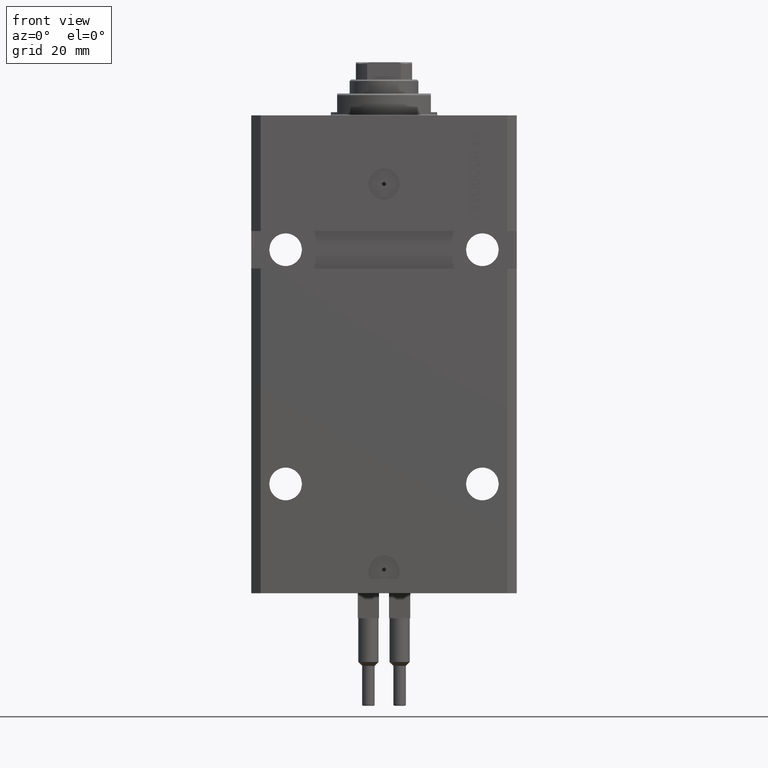
[diagram: clean part render]
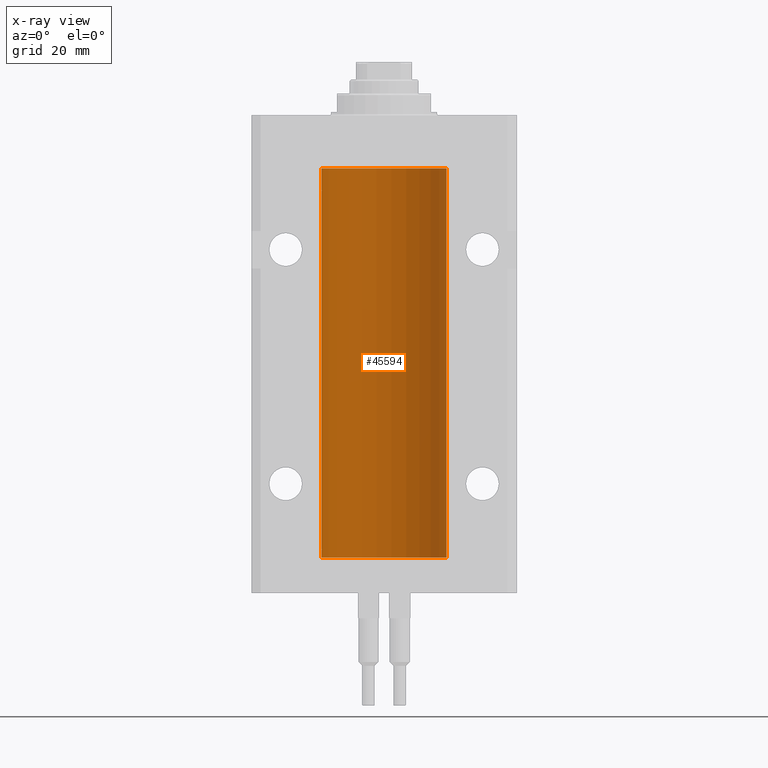
[diagram: x-ray — body ghosted, one internal face saturated and labeled with its STEP entity id]
A machine part, front view, then the same camera in x-ray: the body is ghosted and one INTERNAL B-rep face — a face not visible from any outside direction — is saturated and labeled: STEP entity #45594.
In plain terms, the highlighted cylindrical surface (partial cylindrical patch) has radius 20 mm, axis along (0, 0, 1).
Its self-contained STEP definition (entity closure, byte-faithful):
#253 = CARTESIAN_POINT ( 'NONE',  ( -19.99253506710755346, 0.5587120480776690545, -139.3251162083025463 ) ) ;
#315 = ORIENTED_EDGE ( 'NONE', *, *, #30732, .F. ) ;
#505 = CARTESIAN_POINT ( 'NONE',  ( -20.00000000000000000, 0.08259581631025542103, -138.3749999999999716 ) ) ;
#1301 = EDGE_CURVE ( 'NONE', #38886, #46113, #16528, .T. ) ;
#1458 = B_SPLINE_CURVE_WITH_KNOTS ( 'NONE', 3,
 ( #38087, #505, #22746, #15553, #19514, #41800, #34142, #34627, #253, #45517, #4213, #14595 ),
 .UNSPECIFIED., .F., .F.,
 ( 4, 2, 2, 2, 2, 4 ),
 ( 5.247116368830962784E-19, 0.0002442693137305545852, 0.0004885386274611086283, 0.0009770772549221576255, 0.001465615882383206840, 0.001954154509844256270 ),
 .UNSPECIFIED. ) ;
#1608 = CARTESIAN_POINT ( 'NONE',  ( 0.000000000000000000, 0.000000000000000000, -17.00000000000000000 ) ) ;
#1985 = CARTESIAN_POINT ( 'NONE',  ( -19.99023380173166231, 0.6249420416828462832, -23.83670793056396064 ) ) ;
#2408 = CIRCLE ( 'NONE', #37945, 20.00000000000000000 ) ;
#2622 = ORIENTED_EDGE ( 'NONE', *, *, #30513, .T. ) ;
#2818 = CARTESIAN_POINT ( 'NONE',  ( 0.000000000000000000, 0.000000000000000000, -141.5999999999999943 ) ) ;
#2864 = AXIS2_PLACEMENT_3D ( 'NONE', #2818, #29021, #32740 ) ;
#3068 = FACE_OUTER_BOUND ( 'NONE', #20297, .T. ) ;
#3634 = DIRECTION ( 'NONE',  ( -0.000000000000000000, -0.000000000000000000, 1.000000000000000000 ) ) ;
#4071 = CARTESIAN_POINT ( 'NONE',  ( 20.00000000000000000, 0.000000000000000000, -141.5999999999999943 ) ) ;
#4213 = CARTESIAN_POINT ( 'NONE',  ( -19.99999999999999645, 0.1631688615953307553, -139.6249999999998010 ) ) ;
#4374 = AXIS2_PLACEMENT_3D ( 'NONE', #1608, #28320, #29059 ) ;
#4695 = ORIENTED_EDGE ( 'NONE', *, *, #10220, .T. ) ;
#5682 = CARTESIAN_POINT ( 'NONE',  ( -19.99253506710754991, 0.5587120480776751608, -24.32511620830248589 ) ) ;
#8240 = CARTESIAN_POINT ( 'NONE',  ( -20.00000000000000000, 2.449293598294706513E-15, -141.5999999999999943 ) ) ;
#9238 = VERTEX_POINT ( 'NONE', #28872 ) ;
#10220 = EDGE_CURVE ( 'NONE', #18214, #35344, #1458, .T. ) ;
#11344 = VECTOR ( 'NONE', #3634, 1000.000000000000000 ) ;
#11480 = ORIENTED_EDGE ( 'NONE', *, *, #16152, .F. ) ;
#13123 = VERTEX_POINT ( 'NONE', #25276 ) ;
#13573 = CARTESIAN_POINT ( 'NONE',  ( -20.00000000000000000, 0.1631688615953320320, -24.62499999999985434 ) ) ;
#14595 = CARTESIAN_POINT ( 'NONE',  ( -20.00000000000010303, 3.580159249456421507E-13, -139.6250000000033253 ) ) ;
#14878 = VERTEX_POINT ( 'NONE', #22662 ) ;
#15045 = B_SPLINE_CURVE_WITH_KNOTS ( 'NONE', 3,
 ( #21486, #17023, #47989, #28926, #36592, #20486, #1985, #44009, #5682, #24461, #13573, #32147 ),
 .UNSPECIFIED., .F., .F.,
 ( 4, 2, 2, 2, 2, 4 ),
 ( 5.848927291235706941E-19, 0.0002442693137305304075, 0.0004885386274610601645, 0.0009770772549221123059, 0.001465615882383164339, 0.001954154509844215938 ),
 .UNSPECIFIED. ) ;
#15553 = CARTESIAN_POINT ( 'NONE',  ( -19.99766197842594195, 0.3150331617867615508, -138.4540207010250299 ) ) ;
#16152 = EDGE_CURVE ( 'NONE', #30906, #9238, #2408, .T. ) ;
#16528 = LINE ( 'NONE', #34877, #32508 ) ;
#17023 = CARTESIAN_POINT ( 'NONE',  ( -19.99999999999999645, 0.08259581631026780002, -23.37500000000000000 ) ) ;
#18100 = CARTESIAN_POINT ( 'NONE',  ( 20.00000000000000000, 0.000000000000000000, -141.5999999999999943 ) ) ;
#18214 = VERTEX_POINT ( 'NONE', #38181 ) ;
#18536 = ORIENTED_EDGE ( 'NONE', *, *, #27487, .F. ) ;
#19044 = CARTESIAN_POINT ( 'NONE',  ( -20.00000000000010303, 3.580159249456421507E-13, -139.6250000000033253 ) ) ;
#19514 = CARTESIAN_POINT ( 'NONE',  ( -19.99638934703457238, 0.3843678041337506568, -138.5004636297809952 ) ) ;
#19603 = DIRECTION ( 'NONE',  ( -0.000000000000000000, -0.000000000000000000, 1.000000000000000000 ) ) ;
#20297 = EDGE_LOOP ( 'NONE', ( #18536, #11480, #30050, #2622, #42660, #29567, #315, #4695 ) ) ;
#20486 = CARTESIAN_POINT ( 'NONE',  ( -19.99256581701871482, 0.5573276956902001311, -23.67348565770948809 ) ) ;
#21486 = CARTESIAN_POINT ( 'NONE',  ( -20.00000000000000000, -2.867584836844214272E-15, -23.37500000000000000 ) ) ;
#22662 = CARTESIAN_POINT ( 'NONE',  ( -20.00000000000010303, 3.580159282543646009E-13, -24.62500000000332889 ) ) ;
#22746 = CARTESIAN_POINT ( 'NONE',  ( -19.99947377218718358, 0.1636439183262808073, -138.3912636400466170 ) ) ;
#23356 = VECTOR ( 'NONE', #19603, 1000.000000000000000 ) ;
#24461 = CARTESIAN_POINT ( 'NONE',  ( -19.99769349528941120, 0.3253804398728645242, -24.55855820727680339 ) ) ;
#25276 = CARTESIAN_POINT ( 'NONE',  ( 20.00000000000000000, 0.000000000000000000, -17.00000000000000000 ) ) ;
#25281 = EDGE_CURVE ( 'NONE', #38886, #14878, #15045, .T. ) ;
#27487 = EDGE_CURVE ( 'NONE', #9238, #35344, #44696, .T. ) ;
#28320 = DIRECTION ( 'NONE',  ( 0.000000000000000000, 0.000000000000000000, 1.000000000000000000 ) ) ;
#28872 = CARTESIAN_POINT ( 'NONE',  ( -20.00000000000000000, 2.449293598294706513E-15, -141.5999999999999943 ) ) ;
#28926 = CARTESIAN_POINT ( 'NONE',  ( -19.99766197842594906, 0.3150331617867667688, -23.45402070102505476 ) ) ;
#29021 = DIRECTION ( 'NONE',  ( -0.000000000000000000, -0.000000000000000000, 1.000000000000000000 ) ) ;
#29059 = DIRECTION ( 'NONE',  ( 1.000000000000000000, 0.000000000000000000, 0.000000000000000000 ) ) ;
#29255 = CYLINDRICAL_SURFACE ( 'NONE', #2864, 20.00000000000000000 ) ;
#29567 = ORIENTED_EDGE ( 'NONE', *, *, #25281, .T. ) ;
#29569 = CARTESIAN_POINT ( 'NONE',  ( -20.00000000000000000, 2.449293598294706513E-15, -17.00000000000000000 ) ) ;
#29650 = CIRCLE ( 'NONE', #4374, 20.00000000000000000 ) ;
#30050 = ORIENTED_EDGE ( 'NONE', *, *, #42719, .T. ) ;
#30072 = CARTESIAN_POINT ( 'NONE',  ( -20.00000000000000000, 2.449293598294706513E-15, -141.5999999999999943 ) ) ;
#30513 = EDGE_CURVE ( 'NONE', #13123, #46113, #29650, .T. ) ;
#30732 = EDGE_CURVE ( 'NONE', #18214, #14878, #42141, .T. ) ;
#30906 = VERTEX_POINT ( 'NONE', #18100 ) ;
#32147 = CARTESIAN_POINT ( 'NONE',  ( -20.00000000000010303, 3.580159282543646009E-13, -24.62500000000332889 ) ) ;
#32508 = VECTOR ( 'NONE', #46986, 1000.000000000000000 ) ;
#32740 = DIRECTION ( 'NONE',  ( 1.000000000000000000, 0.000000000000000000, 0.000000000000000000 ) ) ;
#33574 = VECTOR ( 'NONE', #42406, 1000.000000000000000 ) ;
#34142 = CARTESIAN_POINT ( 'NONE',  ( -19.99023380173166231, 0.6249420416828387337, -138.8367079305639606 ) ) ;
#34627 = CARTESIAN_POINT ( 'NONE',  ( -19.99023018003212471, 0.6250578794725458742, -139.1628480970496753 ) ) ;
#34877 = CARTESIAN_POINT ( 'NONE',  ( -20.00000000000000000, 2.449293598294706513E-15, -141.5999999999999943 ) ) ;
#35278 = DIRECTION ( 'NONE',  ( 0.000000000000000000, 0.000000000000000000, 1.000000000000000000 ) ) ;
#35344 = VERTEX_POINT ( 'NONE', #19044 ) ;
#36592 = CARTESIAN_POINT ( 'NONE',  ( -19.99638934703457593, 0.3843678041337688644, -23.50046362978100944 ) ) ;
#37945 = AXIS2_PLACEMENT_3D ( 'NONE', #42474, #35278, #38515 ) ;
#38087 = CARTESIAN_POINT ( 'NONE',  ( -20.00000000000000000, -1.756252550797319649E-14, -138.3749999999999716 ) ) ;
#38181 = CARTESIAN_POINT ( 'NONE',  ( -20.00000000000000000, -1.756252550797319649E-14, -138.3749999999999716 ) ) ;
#38515 = DIRECTION ( 'NONE',  ( 1.000000000000000000, 0.000000000000000000, 0.000000000000000000 ) ) ;
#38886 = VERTEX_POINT ( 'NONE', #44977 ) ;
#38927 = LINE ( 'NONE', #4071, #33574 ) ;
#41800 = CARTESIAN_POINT ( 'NONE',  ( -19.99256581701871482, 0.5573276956901845880, -138.6734856577095059 ) ) ;
#42141 = LINE ( 'NONE', #8240, #23356 ) ;
#42406 = DIRECTION ( 'NONE',  ( -0.000000000000000000, -0.000000000000000000, 1.000000000000000000 ) ) ;
#42474 = CARTESIAN_POINT ( 'NONE',  ( 0.000000000000000000, 0.000000000000000000, -141.5999999999999943 ) ) ;
#42660 = ORIENTED_EDGE ( 'NONE', *, *, #1301, .F. ) ;
#42719 = EDGE_CURVE ( 'NONE', #30906, #13123, #38927, .T. ) ;
#44009 = CARTESIAN_POINT ( 'NONE',  ( -19.99023018003212471, 0.6250578794725500931, -24.16284809704970371 ) ) ;
#44696 = LINE ( 'NONE', #30072, #11344 ) ;
#44977 = CARTESIAN_POINT ( 'NONE',  ( -20.00000000000000000, -2.867584836844214272E-15, -23.37500000000000000 ) ) ;
#45517 = CARTESIAN_POINT ( 'NONE',  ( -19.99769349528941120, 0.3253804398728610270, -139.5585582072767750 ) ) ;
#45594 = ADVANCED_FACE ( 'NONE', ( #3068 ), #29255, .F. ) ;
#46113 = VERTEX_POINT ( 'NONE', #29569 ) ;
#46986 = DIRECTION ( 'NONE',  ( -0.000000000000000000, -0.000000000000000000, 1.000000000000000000 ) ) ;
#47989 = CARTESIAN_POINT ( 'NONE',  ( -19.99947377218718714, 0.1636439183262877461, -23.39126364004656011 ) ) ;